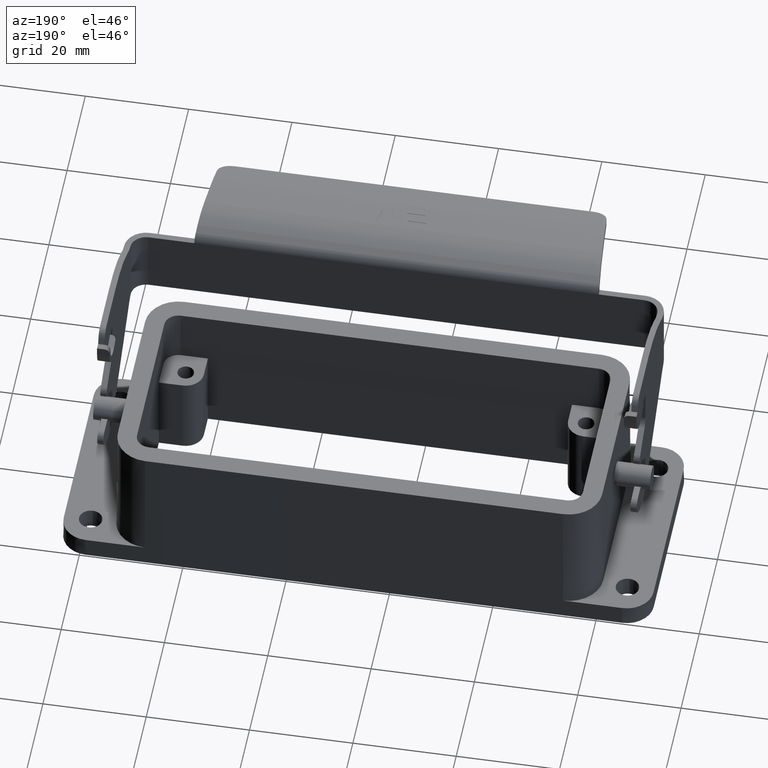
[diagram: clean part render]
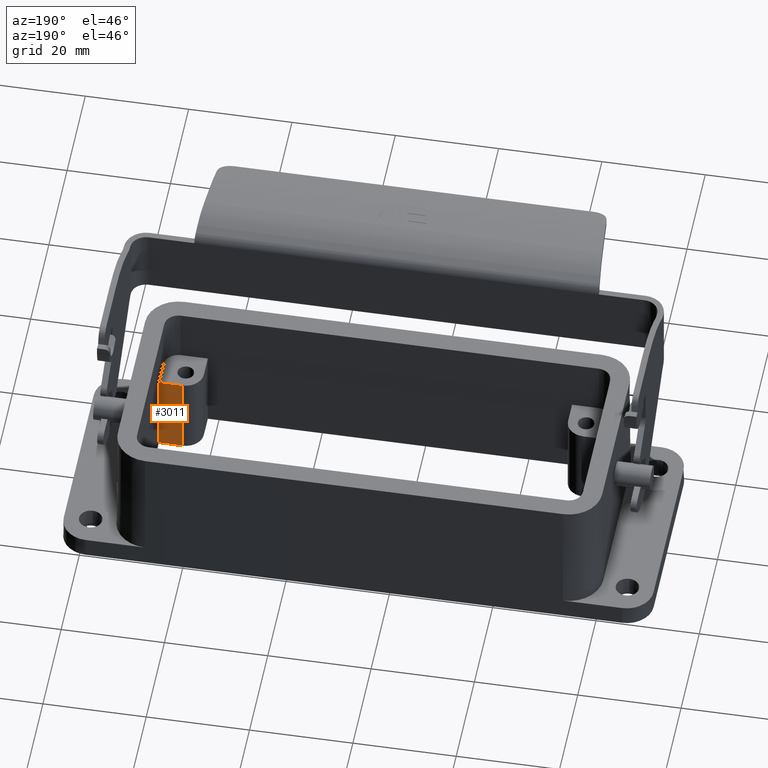
[diagram: same view with one face highlighted and labeled with its STEP entity id]
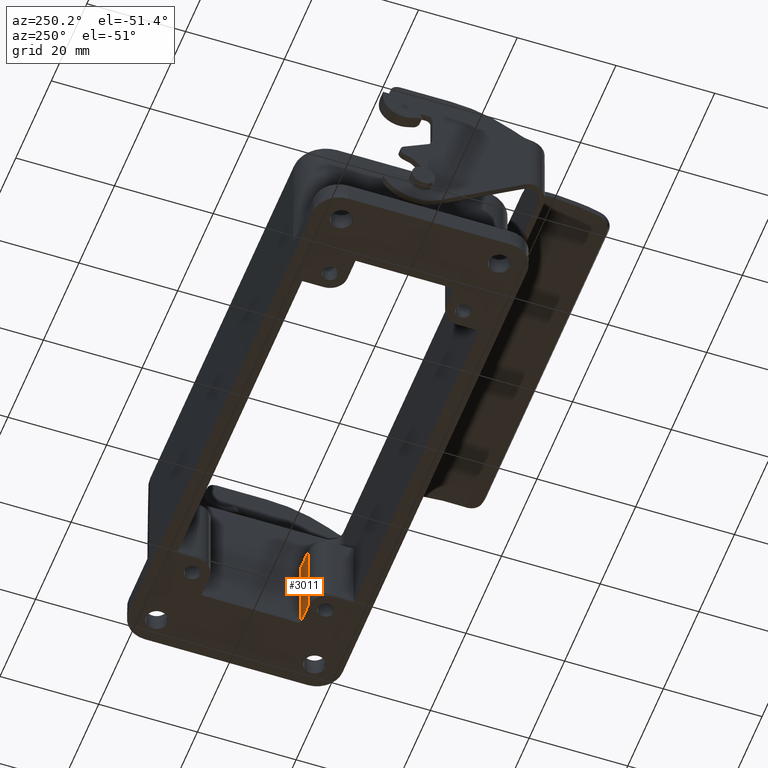
[diagram: same view with one face highlighted and labeled with its STEP entity id]
A machine part, auxiliary view. The second image highlights one B-rep face of the part: STEP entity #3011.
A second angle (auxiliary view) of the same face is appended — the face is thin or edge-on in the first view.
In plain terms, the highlighted planar face has unit normal (0, 1, 0).
Its self-contained STEP definition (entity closure, byte-faithful):
#263 = LINE ( 'NONE', #4622, #1407 ) ;
#453 = VERTEX_POINT ( 'NONE', #1121 ) ;
#634 = FACE_OUTER_BOUND ( 'NONE', #3582, .T. ) ;
#813 = LINE ( 'NONE', #4765, #2339 ) ;
#1121 = CARTESIAN_POINT ( 'NONE',  ( 1.177007986500204550, -0.3937007874029409549, -1.287401574803149984 ) ) ;
#1344 = VECTOR ( 'NONE', #5301, 39.37007874015748143 ) ;
#1407 = VECTOR ( 'NONE', #1852, 39.37007874015748143 ) ;
#1852 = DIRECTION ( 'NONE',  ( 0.000000000000000000, 0.000000000000000000, -1.000000000000000000 ) ) ;
#1907 = ORIENTED_EDGE ( 'NONE', *, *, #2732, .T. ) ;
#1963 = EDGE_CURVE ( 'NONE', #3928, #453, #263, .T. ) ;
#2339 = VECTOR ( 'NONE', #4728, 39.37007874015748143 ) ;
#2600 = CARTESIAN_POINT ( 'NONE',  ( -1.428976490437212643, -0.3937007874029409549, -0.6377952755905511584 ) ) ;
#2732 = EDGE_CURVE ( 'NONE', #3673, #5249, #813, .T. ) ;
#2790 = ORIENTED_EDGE ( 'NONE', *, *, #1963, .T. ) ;
#3011 = ADVANCED_FACE ( 'NONE', ( #634 ), #3465, .T. ) ;
#3169 = LINE ( 'NONE', #2600, #1344 ) ;
#3465 = PLANE ( 'NONE',  #4173 ) ;
#3582 = EDGE_LOOP ( 'NONE', ( #5616, #2790, #6785, #1907 ) ) ;
#3610 = CARTESIAN_POINT ( 'NONE',  ( 0.9960629921259843700, -0.3937007874029409549, -0.6377952755905511584 ) ) ;
#3673 = VERTEX_POINT ( 'NONE', #6014 ) ;
#3928 = VERTEX_POINT ( 'NONE', #5158 ) ;
#3942 = CARTESIAN_POINT ( 'NONE',  ( -1.428976490437212643, -0.3937007874029409549, -0.6377952755905511584 ) ) ;
#3976 = DIRECTION ( 'NONE',  ( 0.000000000000000000, -0.000000000000000000, 1.000000000000000000 ) ) ;
#4173 = AXIS2_PLACEMENT_3D ( 'NONE', #3942, #5599, #3976 ) ;
#4622 = CARTESIAN_POINT ( 'NONE',  ( 1.177007986500204773, -0.3937007874029409549, -0.6377952755905511584 ) ) ;
#4728 = DIRECTION ( 'NONE',  ( 0.000000000000000000, -0.000000000000000000, 1.000000000000000000 ) ) ;
#4765 = CARTESIAN_POINT ( 'NONE',  ( 0.9960629921259843700, -0.3937007874029409549, -0.6377952755905511584 ) ) ;
#4867 = LINE ( 'NONE', #5271, #6434 ) ;
#5158 = CARTESIAN_POINT ( 'NONE',  ( 1.177007986500204550, -0.3937007874029409549, -0.6377952755905511584 ) ) ;
#5240 = EDGE_CURVE ( 'NONE', #5249, #3928, #3169, .T. ) ;
#5249 = VERTEX_POINT ( 'NONE', #3610 ) ;
#5271 = CARTESIAN_POINT ( 'NONE',  ( 2.755905511811370001, -0.3937007874029409549, -1.287401574803149984 ) ) ;
#5301 = DIRECTION ( 'NONE',  ( 1.000000000000000000, 0.000000000000000000, -0.000000000000000000 ) ) ;
#5599 = DIRECTION ( 'NONE',  ( 0.000000000000000000, 1.000000000000000000, 0.000000000000000000 ) ) ;
#5616 = ORIENTED_EDGE ( 'NONE', *, *, #5240, .T. ) ;
#6014 = CARTESIAN_POINT ( 'NONE',  ( 0.9960629921259843700, -0.3937007874029409549, -1.287401574803149984 ) ) ;
#6401 = EDGE_CURVE ( 'NONE', #3673, #453, #4867, .T. ) ;
#6434 = VECTOR ( 'NONE', #7067, 39.37007874015748143 ) ;
#6785 = ORIENTED_EDGE ( 'NONE', *, *, #6401, .F. ) ;
#7067 = DIRECTION ( 'NONE',  ( 1.000000000000000000, -0.000000000000000000, 0.000000000000000000 ) ) ;